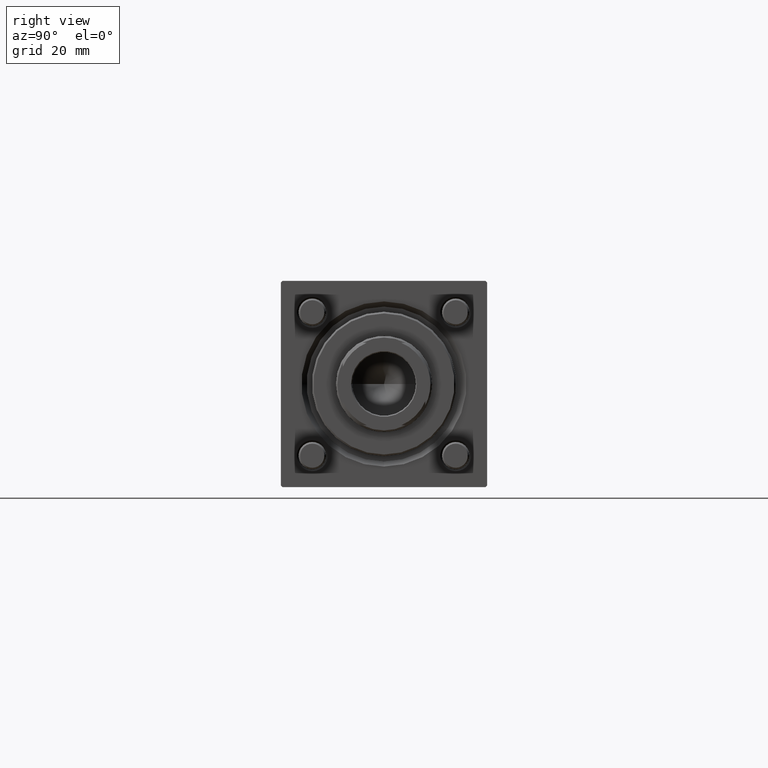
[diagram: clean part render]
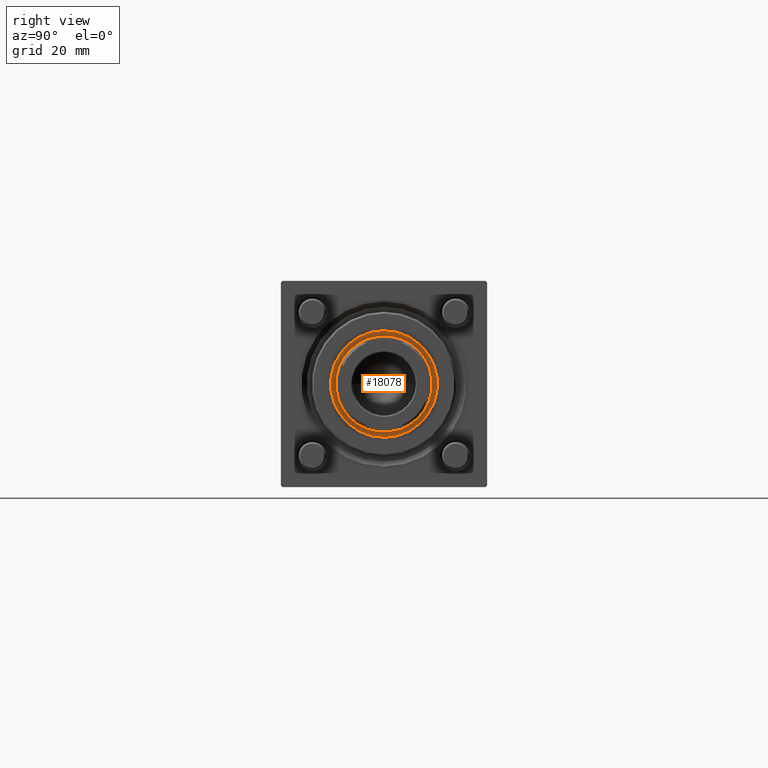
[diagram: same view with one face highlighted and labeled with its STEP entity id]
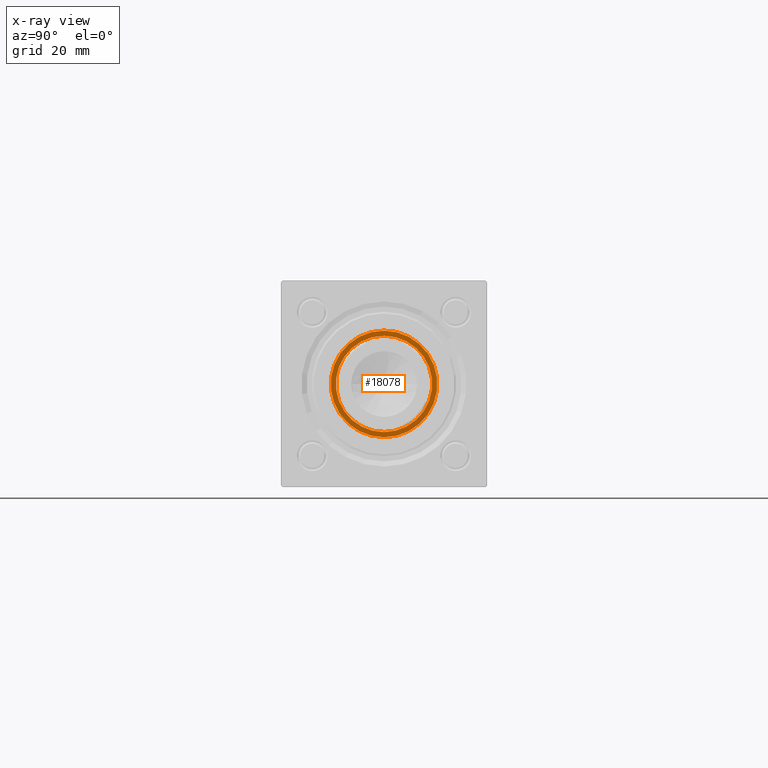
[diagram: x-ray of the same camera — body ghosted, the highlighted face saturated]
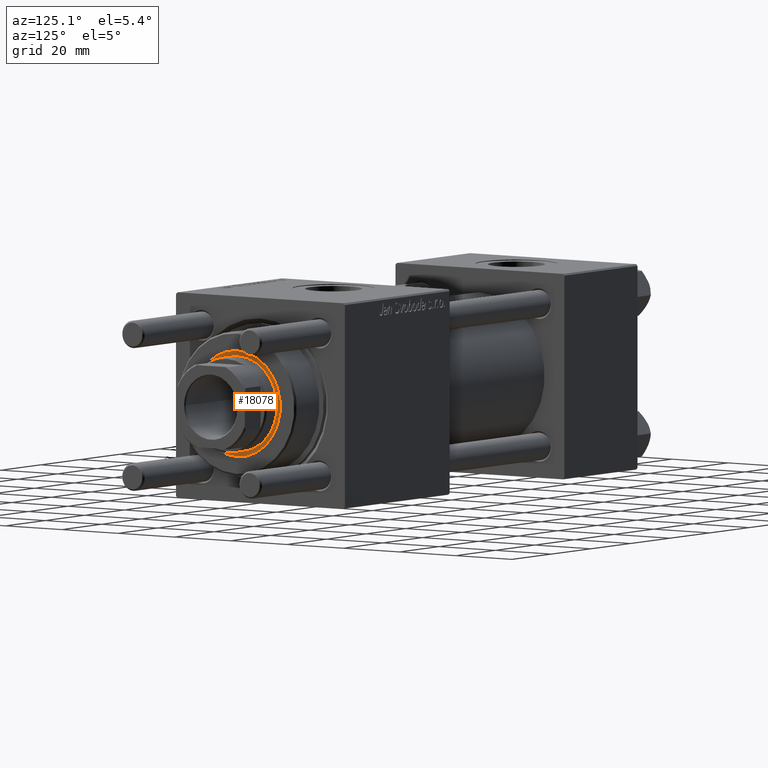
[diagram: same view with one face highlighted and labeled with its STEP entity id]
A machine part, right view. The second image highlights one B-rep face of the part: STEP entity #18078.
The next image is the same camera in x-ray: the body ghosted, the highlighted face saturated — about 0% of this face is hidden behind the body in this view.
A second angle (auxiliary view) of the same face is appended — the face is thin or edge-on in the first view.
In plain terms, the highlighted planar face has unit normal (1, 0, 0).
Its self-contained STEP definition (entity closure, byte-faithful):
#4036 = EDGE_CURVE ( 'NONE', #31510, #37838, #31170, .T. ) ;
#5998 = EDGE_CURVE ( 'NONE', #20014, #11691, #16568, .T. ) ;
#6000 = DIRECTION ( 'NONE',  ( -0.000000000000000000, -0.000000000000000000, -1.000000000000000000 ) ) ;
#6366 = EDGE_LOOP ( 'NONE', ( #8201, #38538 ) ) ;
#6460 = CARTESIAN_POINT ( 'NONE',  ( 0.000000000000000000, 0.000000000000000000, 40.20000000000000284 ) ) ;
#8201 = ORIENTED_EDGE ( 'NONE', *, *, #31955, .T. ) ;
#11691 = VERTEX_POINT ( 'NONE', #29497 ) ;
#15226 = ORIENTED_EDGE ( 'NONE', *, *, #43895, .T. ) ;
#15675 = PLANE ( 'NONE',  #55354 ) ;
#15961 = DIRECTION ( 'NONE',  ( 0.000000000000000000, 0.000000000000000000, 1.000000000000000000 ) ) ;
#15980 = CARTESIAN_POINT ( 'NONE',  ( 15.50000000000000000, 0.000000000000000000, 40.20000000000000284 ) ) ;
#16568 = CIRCLE ( 'NONE', #31216, 14.00000000000000178 ) ;
#17057 = CIRCLE ( 'NONE', #50095, 15.50000000000000000 ) ;
#18078 = ADVANCED_FACE ( 'NONE', ( #28302, #32320 ), #15675, .T. ) ;
#19617 = CARTESIAN_POINT ( 'NONE',  ( -14.00000000000000178, 1.714505518806294835E-15, 40.20000000000000284 ) ) ;
#20014 = VERTEX_POINT ( 'NONE', #19617 ) ;
#20192 = DIRECTION ( 'NONE',  ( 1.000000000000000000, 0.000000000000000000, 0.000000000000000000 ) ) ;
#22289 = DIRECTION ( 'NONE',  ( 1.000000000000000000, 0.000000000000000000, 0.000000000000000000 ) ) ;
#22945 = CARTESIAN_POINT ( 'NONE',  ( 0.000000000000000000, 0.000000000000000000, 40.20000000000000284 ) ) ;
#26404 = CARTESIAN_POINT ( 'NONE',  ( -15.50000000000000000, 1.898202538678397557E-15, 40.20000000000000284 ) ) ;
#27549 = AXIS2_PLACEMENT_3D ( 'NONE', #38794, #46833, #43102 ) ;
#28302 = FACE_OUTER_BOUND ( 'NONE', #47478, .T. ) ;
#29497 = CARTESIAN_POINT ( 'NONE',  ( 14.00000000000000178, 0.000000000000000000, 40.20000000000000284 ) ) ;
#29519 = AXIS2_PLACEMENT_3D ( 'NONE', #33412, #37156, #20192 ) ;
#31170 = CIRCLE ( 'NONE', #27549, 15.50000000000000000 ) ;
#31216 = AXIS2_PLACEMENT_3D ( 'NONE', #22945, #6000, #45072 ) ;
#31510 = VERTEX_POINT ( 'NONE', #26404 ) ;
#31955 = EDGE_CURVE ( 'NONE', #11691, #20014, #35009, .T. ) ;
#32320 = FACE_BOUND ( 'NONE', #6366, .T. ) ;
#33412 = CARTESIAN_POINT ( 'NONE',  ( 0.000000000000000000, 0.000000000000000000, 40.20000000000000284 ) ) ;
#35009 = CIRCLE ( 'NONE', #29519, 14.00000000000000178 ) ;
#37156 = DIRECTION ( 'NONE',  ( -0.000000000000000000, -0.000000000000000000, -1.000000000000000000 ) ) ;
#37838 = VERTEX_POINT ( 'NONE', #15980 ) ;
#38538 = ORIENTED_EDGE ( 'NONE', *, *, #5998, .T. ) ;
#38794 = CARTESIAN_POINT ( 'NONE',  ( 0.000000000000000000, 0.000000000000000000, 40.20000000000000284 ) ) ;
#40078 = ORIENTED_EDGE ( 'NONE', *, *, #4036, .T. ) ;
#40949 = DIRECTION ( 'NONE',  ( 1.000000000000000000, 0.000000000000000000, -0.000000000000000000 ) ) ;
#43102 = DIRECTION ( 'NONE',  ( 1.000000000000000000, 0.000000000000000000, 0.000000000000000000 ) ) ;
#43895 = EDGE_CURVE ( 'NONE', #37838, #31510, #17057, .T. ) ;
#44118 = CARTESIAN_POINT ( 'NONE',  ( 0.000000000000000000, 0.000000000000000000, 40.20000000000000284 ) ) ;
#45072 = DIRECTION ( 'NONE',  ( 1.000000000000000000, 0.000000000000000000, 0.000000000000000000 ) ) ;
#46833 = DIRECTION ( 'NONE',  ( 0.000000000000000000, 0.000000000000000000, 1.000000000000000000 ) ) ;
#47478 = EDGE_LOOP ( 'NONE', ( #15226, #40078 ) ) ;
#50095 = AXIS2_PLACEMENT_3D ( 'NONE', #44118, #52738, #22289 ) ;
#52738 = DIRECTION ( 'NONE',  ( 0.000000000000000000, 0.000000000000000000, 1.000000000000000000 ) ) ;
#55354 = AXIS2_PLACEMENT_3D ( 'NONE', #6460, #15961, #40949 ) ;